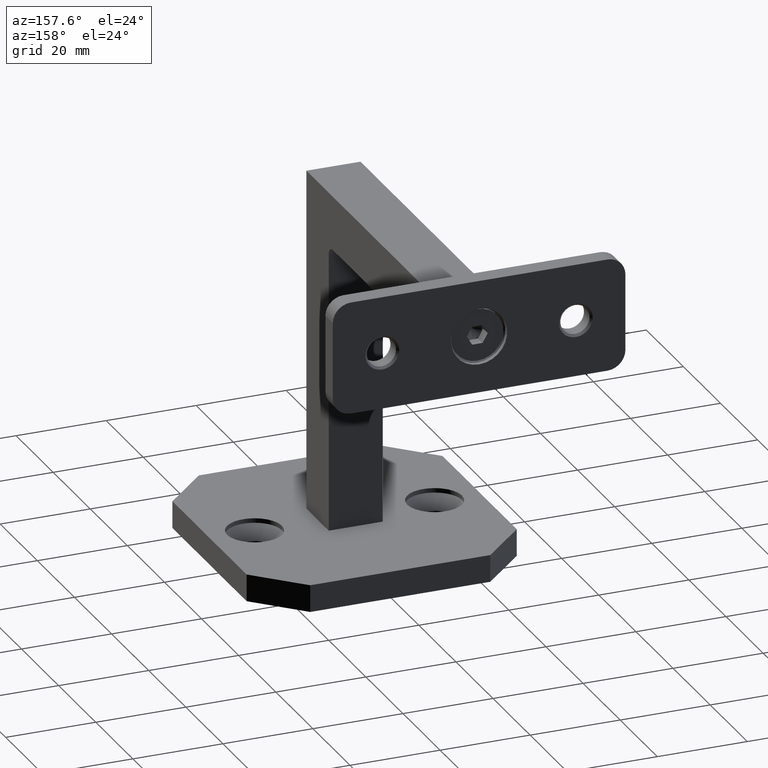
[diagram: clean part render]
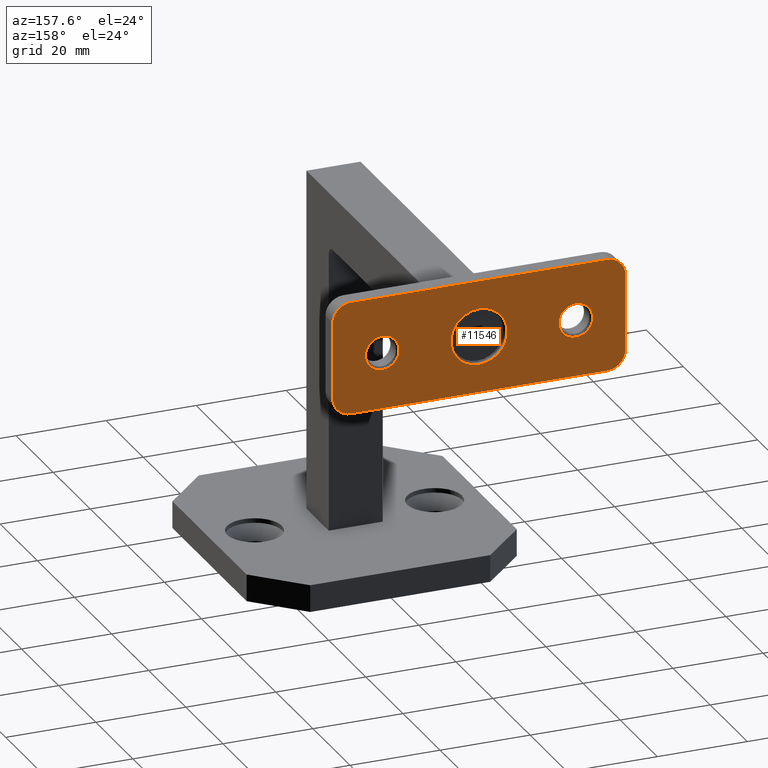
[diagram: same view with one face highlighted and labeled with its STEP entity id]
A machine part, auxiliary view. The second image highlights one B-rep face of the part: STEP entity #11546.
In plain terms, the highlighted planar face has unit normal (0, 1, 0).
Its self-contained STEP definition (entity closure, byte-faithful):
#827 = ORIENTED_EDGE ( 'NONE', *, *, #14586, .T. ) ;
#955 = CARTESIAN_POINT ( 'NONE',  ( -21.50000000000000000, 2.000000000000001776, 0.000000000000000000 ) ) ;
#1172 = CARTESIAN_POINT ( 'NONE',  ( -32.50000000000000000, 2.000000000000001776, 8.499999999999992895 ) ) ;
#1193 = ORIENTED_EDGE ( 'NONE', *, *, #7619, .T. ) ;
#1195 = AXIS2_PLACEMENT_3D ( 'NONE', #12578, #16294, #23898 ) ;
#1445 = ORIENTED_EDGE ( 'NONE', *, *, #1941, .F. ) ;
#1465 = DIRECTION ( 'NONE',  ( -1.000000000000000000, -0.000000000000000000, -0.000000000000000000 ) ) ;
#1730 = CIRCLE ( 'NONE', #7947, 3.750000000000010214 ) ;
#1867 = FACE_BOUND ( 'NONE', #10556, .T. ) ;
#1941 = EDGE_CURVE ( 'NONE', #18642, #12038, #8187, .T. ) ;
#2048 = VERTEX_POINT ( 'NONE', #5136 ) ;
#2433 = VERTEX_POINT ( 'NONE', #9435 ) ;
#2440 = EDGE_CURVE ( 'NONE', #12038, #18642, #10154, .T. ) ;
#2478 = VERTEX_POINT ( 'NONE', #3784 ) ;
#2706 = DIRECTION ( 'NONE',  ( 0.000000000000000000, 0.000000000000000000, 1.000000000000000000 ) ) ;
#3210 = CARTESIAN_POINT ( 'NONE',  ( -21.50000000000000000, 2.000000000000001776, 0.000000000000000000 ) ) ;
#3212 = LINE ( 'NONE', #7168, #23150 ) ;
#3351 = VERTEX_POINT ( 'NONE', #8110 ) ;
#3446 = DIRECTION ( 'NONE',  ( -0.000000000000000000, -1.000000000000000000, -0.000000000000000000 ) ) ;
#3784 = CARTESIAN_POINT ( 'NONE',  ( 32.50000000000000000, 2.000000000000001776, -8.500000000000007105 ) ) ;
#4183 = ORIENTED_EDGE ( 'NONE', *, *, #22622, .T. ) ;
#4390 = EDGE_CURVE ( 'NONE', #18622, #9088, #18359, .T. ) ;
#4427 = CARTESIAN_POINT ( 'NONE',  ( -21.50000000000000000, 2.000000000000001776, -3.750000000000010658 ) ) ;
#4604 = AXIS2_PLACEMENT_3D ( 'NONE', #3210, #3446, #16576 ) ;
#4942 = CARTESIAN_POINT ( 'NONE',  ( 32.50000000000000000, 2.000000000000001776, 8.499999999999992895 ) ) ;
#5010 = VERTEX_POINT ( 'NONE', #11017 ) ;
#5136 = CARTESIAN_POINT ( 'NONE',  ( 28.49999999999999645, 2.000000000000001776, 12.49999999999999645 ) ) ;
#5586 = CIRCLE ( 'NONE', #23078, 3.750000000000010214 ) ;
#5703 = AXIS2_PLACEMENT_3D ( 'NONE', #7930, #20955, #22684 ) ;
#5790 = EDGE_CURVE ( 'NONE', #15119, #5010, #24228, .T. ) ;
#5830 = ORIENTED_EDGE ( 'NONE', *, *, #7305, .T. ) ;
#6128 = DIRECTION ( 'NONE',  ( 0.000000000000000000, 1.000000000000000000, 0.000000000000000000 ) ) ;
#6176 = EDGE_LOOP ( 'NONE', ( #13297, #1445 ) ) ;
#7168 = CARTESIAN_POINT ( 'NONE',  ( 32.50000000000000000, 2.000000000000001776, -12.50000000000000355 ) ) ;
#7199 = ORIENTED_EDGE ( 'NONE', *, *, #5790, .T. ) ;
#7305 = EDGE_CURVE ( 'NONE', #2048, #11479, #11860, .T. ) ;
#7462 = VECTOR ( 'NONE', #15973, 1000.000000000000000 ) ;
#7573 = DIRECTION ( 'NONE',  ( 0.000000000000000000, 0.000000000000000000, 1.000000000000000000 ) ) ;
#7619 = EDGE_CURVE ( 'NONE', #3351, #2048, #13881, .T. ) ;
#7728 = FACE_BOUND ( 'NONE', #6176, .T. ) ;
#7930 = CARTESIAN_POINT ( 'NONE',  ( 28.50000000000000000, 2.000000000000001776, 8.499999999999992895 ) ) ;
#7947 = AXIS2_PLACEMENT_3D ( 'NONE', #24198, #20483, #16989 ) ;
#8110 = CARTESIAN_POINT ( 'NONE',  ( -28.50000000000000000, 2.000000000000001776, 12.49999999999999645 ) ) ;
#8187 = CIRCLE ( 'NONE', #17584, 6.250000000000000000 ) ;
#9009 = DIRECTION ( 'NONE',  ( -0.000000000000000000, -0.000000000000000000, -1.000000000000000000 ) ) ;
#9088 = VERTEX_POINT ( 'NONE', #1172 ) ;
#9301 = VERTEX_POINT ( 'NONE', #16578 ) ;
#9435 = CARTESIAN_POINT ( 'NONE',  ( 21.50000000000000000, 2.000000000000001776, 3.750000000000010658 ) ) ;
#9745 = FACE_OUTER_BOUND ( 'NONE', #14159, .T. ) ;
#9869 = CARTESIAN_POINT ( 'NONE',  ( 0.000000000000000000, 2.000000000000001776, 0.000000000000000000 ) ) ;
#9921 = AXIS2_PLACEMENT_3D ( 'NONE', #11352, #13329, #17032 ) ;
#10154 = CIRCLE ( 'NONE', #12073, 6.250000000000000000 ) ;
#10377 = DIRECTION ( 'NONE',  ( 0.000000000000000000, 1.000000000000000000, 0.000000000000000000 ) ) ;
#10556 = EDGE_LOOP ( 'NONE', ( #23742, #4183 ) ) ;
#10945 = EDGE_LOOP ( 'NONE', ( #827, #20019 ) ) ;
#11017 = CARTESIAN_POINT ( 'NONE',  ( -28.50000000000000000, 2.000000000000001776, -12.50000000000000355 ) ) ;
#11163 = CARTESIAN_POINT ( 'NONE',  ( 0.000000000000000000, 2.000000000000001776, 0.000000000000000000 ) ) ;
#11343 = CARTESIAN_POINT ( 'NONE',  ( 28.49999999999999645, 2.000000000000001776, -12.50000000000000355 ) ) ;
#11352 = CARTESIAN_POINT ( 'NONE',  ( -28.50000000000000000, 2.000000000000001776, 8.499999999999992895 ) ) ;
#11479 = VERTEX_POINT ( 'NONE', #4942 ) ;
#11546 = ADVANCED_FACE ( 'NONE', ( #7728, #1867, #21194, #9745 ), #17213, .T. ) ;
#11860 = CIRCLE ( 'NONE', #5703, 4.000000000000000000 ) ;
#12038 = VERTEX_POINT ( 'NONE', #23973 ) ;
#12073 = AXIS2_PLACEMENT_3D ( 'NONE', #11163, #24299, #7573 ) ;
#12122 = CARTESIAN_POINT ( 'NONE',  ( -28.50000000000000000, 2.000000000000001776, -8.500000000000007105 ) ) ;
#12159 = EDGE_CURVE ( 'NONE', #2433, #9301, #12968, .T. ) ;
#12434 = DIRECTION ( 'NONE',  ( 0.000000000000000000, 0.000000000000000000, 1.000000000000000000 ) ) ;
#12578 = CARTESIAN_POINT ( 'NONE',  ( 28.49999999999999645, 2.000000000000001776, -8.500000000000007105 ) ) ;
#12968 = CIRCLE ( 'NONE', #13185, 3.750000000000010214 ) ;
#13185 = AXIS2_PLACEMENT_3D ( 'NONE', #16680, #24217, #18554 ) ;
#13297 = ORIENTED_EDGE ( 'NONE', *, *, #2440, .F. ) ;
#13329 = DIRECTION ( 'NONE',  ( 0.000000000000000000, 1.000000000000000000, 0.000000000000000000 ) ) ;
#13584 = DIRECTION ( 'NONE',  ( 0.000000000000000000, -0.000000000000000000, 1.000000000000000000 ) ) ;
#13711 = CIRCLE ( 'NONE', #1195, 4.000000000000000000 ) ;
#13793 = CARTESIAN_POINT ( 'NONE',  ( 7.654042494670957606E-16, 2.000000000000001776, -6.250000000000000000 ) ) ;
#13881 = LINE ( 'NONE', #21512, #7462 ) ;
#14159 = EDGE_LOOP ( 'NONE', ( #23310, #24292, #1193, #5830, #18665, #21136, #7199, #21387 ) ) ;
#14586 = EDGE_CURVE ( 'NONE', #20443, #15235, #5586, .T. ) ;
#15119 = VERTEX_POINT ( 'NONE', #11343 ) ;
#15235 = VERTEX_POINT ( 'NONE', #4427 ) ;
#15325 = AXIS2_PLACEMENT_3D ( 'NONE', #9869, #6128, #13584 ) ;
#15449 = EDGE_CURVE ( 'NONE', #11479, #2478, #3212, .T. ) ;
#15459 = CIRCLE ( 'NONE', #9921, 4.000000000000000000 ) ;
#15923 = EDGE_CURVE ( 'NONE', #5010, #18622, #18761, .T. ) ;
#15973 = DIRECTION ( 'NONE',  ( 1.000000000000000000, 0.000000000000000000, 0.000000000000000000 ) ) ;
#16294 = DIRECTION ( 'NONE',  ( 0.000000000000000000, 1.000000000000000000, 0.000000000000000000 ) ) ;
#16576 = DIRECTION ( 'NONE',  ( 0.000000000000000000, 0.000000000000000000, 1.000000000000000000 ) ) ;
#16578 = CARTESIAN_POINT ( 'NONE',  ( 21.50000000000000000, 2.000000000000001776, -3.750000000000010658 ) ) ;
#16680 = CARTESIAN_POINT ( 'NONE',  ( 21.50000000000000000, 2.000000000000001776, 0.000000000000000000 ) ) ;
#16967 = CARTESIAN_POINT ( 'NONE',  ( -32.50000000000000000, 2.000000000000001776, -12.50000000000000355 ) ) ;
#16989 = DIRECTION ( 'NONE',  ( 0.000000000000000000, 0.000000000000000000, 1.000000000000000000 ) ) ;
#17032 = DIRECTION ( 'NONE',  ( 0.000000000000000000, 0.000000000000000000, 1.000000000000000000 ) ) ;
#17213 = PLANE ( 'NONE',  #15325 ) ;
#17584 = AXIS2_PLACEMENT_3D ( 'NONE', #21764, #23675, #12434 ) ;
#17775 = VECTOR ( 'NONE', #1465, 1000.000000000000000 ) ;
#18359 = LINE ( 'NONE', #16967, #22154 ) ;
#18416 = CARTESIAN_POINT ( 'NONE',  ( -32.50000000000000000, 2.000000000000001776, -12.50000000000000355 ) ) ;
#18554 = DIRECTION ( 'NONE',  ( 0.000000000000000000, 0.000000000000000000, 1.000000000000000000 ) ) ;
#18622 = VERTEX_POINT ( 'NONE', #22988 ) ;
#18642 = VERTEX_POINT ( 'NONE', #13793 ) ;
#18665 = ORIENTED_EDGE ( 'NONE', *, *, #15449, .T. ) ;
#18761 = CIRCLE ( 'NONE', #22489, 4.000000000000000000 ) ;
#20019 = ORIENTED_EDGE ( 'NONE', *, *, #22514, .T. ) ;
#20443 = VERTEX_POINT ( 'NONE', #20697 ) ;
#20483 = DIRECTION ( 'NONE',  ( -0.000000000000000000, -1.000000000000000000, -0.000000000000000000 ) ) ;
#20489 = EDGE_CURVE ( 'NONE', #9088, #3351, #15459, .T. ) ;
#20542 = DIRECTION ( 'NONE',  ( 0.000000000000000000, 0.000000000000000000, 1.000000000000000000 ) ) ;
#20697 = CARTESIAN_POINT ( 'NONE',  ( -21.50000000000000000, 2.000000000000001776, 3.750000000000010658 ) ) ;
#20955 = DIRECTION ( 'NONE',  ( 0.000000000000000000, 1.000000000000000000, 0.000000000000000000 ) ) ;
#21136 = ORIENTED_EDGE ( 'NONE', *, *, #23525, .T. ) ;
#21194 = FACE_BOUND ( 'NONE', #10945, .T. ) ;
#21387 = ORIENTED_EDGE ( 'NONE', *, *, #15923, .T. ) ;
#21503 = DIRECTION ( 'NONE',  ( -0.000000000000000000, -1.000000000000000000, -0.000000000000000000 ) ) ;
#21512 = CARTESIAN_POINT ( 'NONE',  ( -32.50000000000000000, 2.000000000000001776, 12.49999999999999645 ) ) ;
#21764 = CARTESIAN_POINT ( 'NONE',  ( 0.000000000000000000, 2.000000000000001776, 0.000000000000000000 ) ) ;
#22154 = VECTOR ( 'NONE', #20542, 1000.000000000000000 ) ;
#22489 = AXIS2_PLACEMENT_3D ( 'NONE', #12122, #10377, #2706 ) ;
#22514 = EDGE_CURVE ( 'NONE', #15235, #20443, #24102, .T. ) ;
#22622 = EDGE_CURVE ( 'NONE', #9301, #2433, #1730, .T. ) ;
#22684 = DIRECTION ( 'NONE',  ( 0.000000000000000000, 0.000000000000000000, 1.000000000000000000 ) ) ;
#22988 = CARTESIAN_POINT ( 'NONE',  ( -32.50000000000000000, 2.000000000000001776, -8.500000000000007105 ) ) ;
#23078 = AXIS2_PLACEMENT_3D ( 'NONE', #955, #21503, #23238 ) ;
#23150 = VECTOR ( 'NONE', #9009, 1000.000000000000000 ) ;
#23238 = DIRECTION ( 'NONE',  ( 0.000000000000000000, 0.000000000000000000, 1.000000000000000000 ) ) ;
#23310 = ORIENTED_EDGE ( 'NONE', *, *, #4390, .T. ) ;
#23525 = EDGE_CURVE ( 'NONE', #2478, #15119, #13711, .T. ) ;
#23675 = DIRECTION ( 'NONE',  ( -0.000000000000000000, 1.000000000000000000, -0.000000000000000000 ) ) ;
#23742 = ORIENTED_EDGE ( 'NONE', *, *, #12159, .T. ) ;
#23898 = DIRECTION ( 'NONE',  ( 0.000000000000000000, 0.000000000000000000, 1.000000000000000000 ) ) ;
#23973 = CARTESIAN_POINT ( 'NONE',  ( 0.000000000000000000, 2.000000000000001776, 6.250000000000000000 ) ) ;
#24102 = CIRCLE ( 'NONE', #4604, 3.750000000000010214 ) ;
#24198 = CARTESIAN_POINT ( 'NONE',  ( 21.50000000000000000, 2.000000000000001776, 0.000000000000000000 ) ) ;
#24217 = DIRECTION ( 'NONE',  ( -0.000000000000000000, -1.000000000000000000, -0.000000000000000000 ) ) ;
#24228 = LINE ( 'NONE', #18416, #17775 ) ;
#24292 = ORIENTED_EDGE ( 'NONE', *, *, #20489, .T. ) ;
#24299 = DIRECTION ( 'NONE',  ( -0.000000000000000000, 1.000000000000000000, -0.000000000000000000 ) ) ;